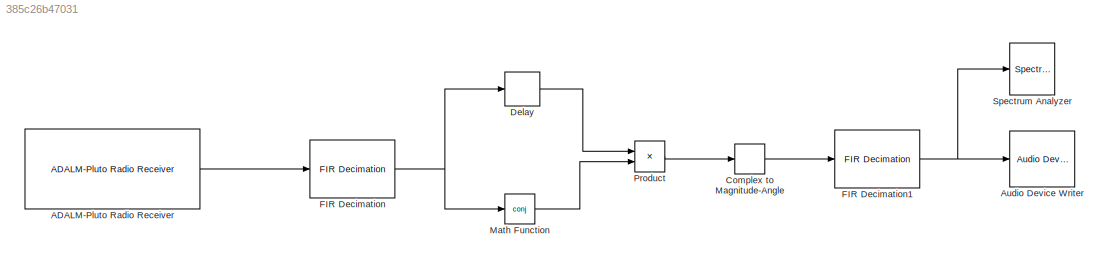
MODEL slx_385c26b47031
KIND model
CONFIG AbsTol = auto
CONFIG EnableMultiTasking = off
CONFIG FixedStep = auto
CONFIG MaxStep = auto
CONFIG MinStep = auto
CONFIG RelTol = 1e-3
CONFIG SampleTimeConstraint = Unconstrained
CONFIG SolverName = VariableStepAuto
CONFIG StartTime = 0.0
CONFIG StopTime = 10.0
BLOCK [Reference] ADALM-Pluto Radio Receiver  REF=plutoradiolib/ADALM-Pluto Radio
Receiver
  Ports = [0, 1]
  SourceBlock = plutoradiolib/ADALM-Pluto Radio\nReceiver
  SourceProductBaseCode = PLUTO
  SourceType = comm.SDRRxPluto
BLOCK [Reference] Audio Device Writer  REF=dspsnks4/Audio Device
Writer
  Ports = [1]
  SourceBlock = dspsnks4/Audio Device\nWriter
  SourceProductBaseCode = DS
  SourceType = Audio Device Writer
BLOCK [ComplexToMagnitudeAngle] Complex to Magnitude-Angle
  Output = Angle
  Ports = [1, 1]
BLOCK [Delay] Delay
  DelayLength = 1
  InputPortMap = u0
  InputProcessing = Columns as channels (frame based)
  Ports = [1, 1]
BLOCK [Reference] FIR Decimation  REF=dspmlti4/FIR
Decimation
  Ports = [1, 1]
  SourceBlock = dspmlti4/FIR\nDecimation
  SourceProductBaseCode = DS
  SourceType = FIR Decimation
  UserDataPersistent = on
BLOCK [Reference] FIR Decimation1  REF=dspmlti4/FIR
Decimation
  Ports = [1, 1]
  SourceBlock = dspmlti4/FIR\nDecimation
  SourceProductBaseCode = DS
  SourceType = FIR Decimation
  UserDataPersistent = on
BLOCK [Math] Math Function
  Operator = conj
  Ports = [1, 1]
  SignedPower = on
BLOCK [Product] Product
  Ports = [2, 1]
BLOCK [SpectrumAnalyzer] Spectrum Analyzer
  Ports = [1]
  ScopeSpecificationString = spbscopes.SpectrumAnalyzerBlockCfg('CurrentConfiguration', extmgr.ConfigurationSet(extmgr.Configuration('Core','General UI',true),extmgr.Configuration('Core','Source UI',true),extmgr.Configuration('Sources','WiredSimulink',true),extmgr.Configuration('Visuals','Spectrum',true,'AxesProperties',struct('Color',{[0 0 0],[0 0 0]},'XColor',{[0.686274509803922 0.686274509803922 0.686274509803922],[0.68627...<+2038ch>
LINE ADALM-Pluto Radio Receiver:1 -> FIR Decimation:1
LINE Complex to Magnitude-Angle:1 -> FIR Decimation1:1
LINE Delay:1 -> Product:1
NET FIR Decimation1:1 -> Audio Device Writer:1, Spectrum Analyzer:1
NET FIR Decimation:1 -> Delay:1, Math Function:1
LINE Math Function:1 -> Product:2
LINE Product:1 -> Complex to Magnitude-Angle:1
note: NET lines group one-source signal fan-out (src -> all destinations, sorted); 1:1 wires keep LINE
